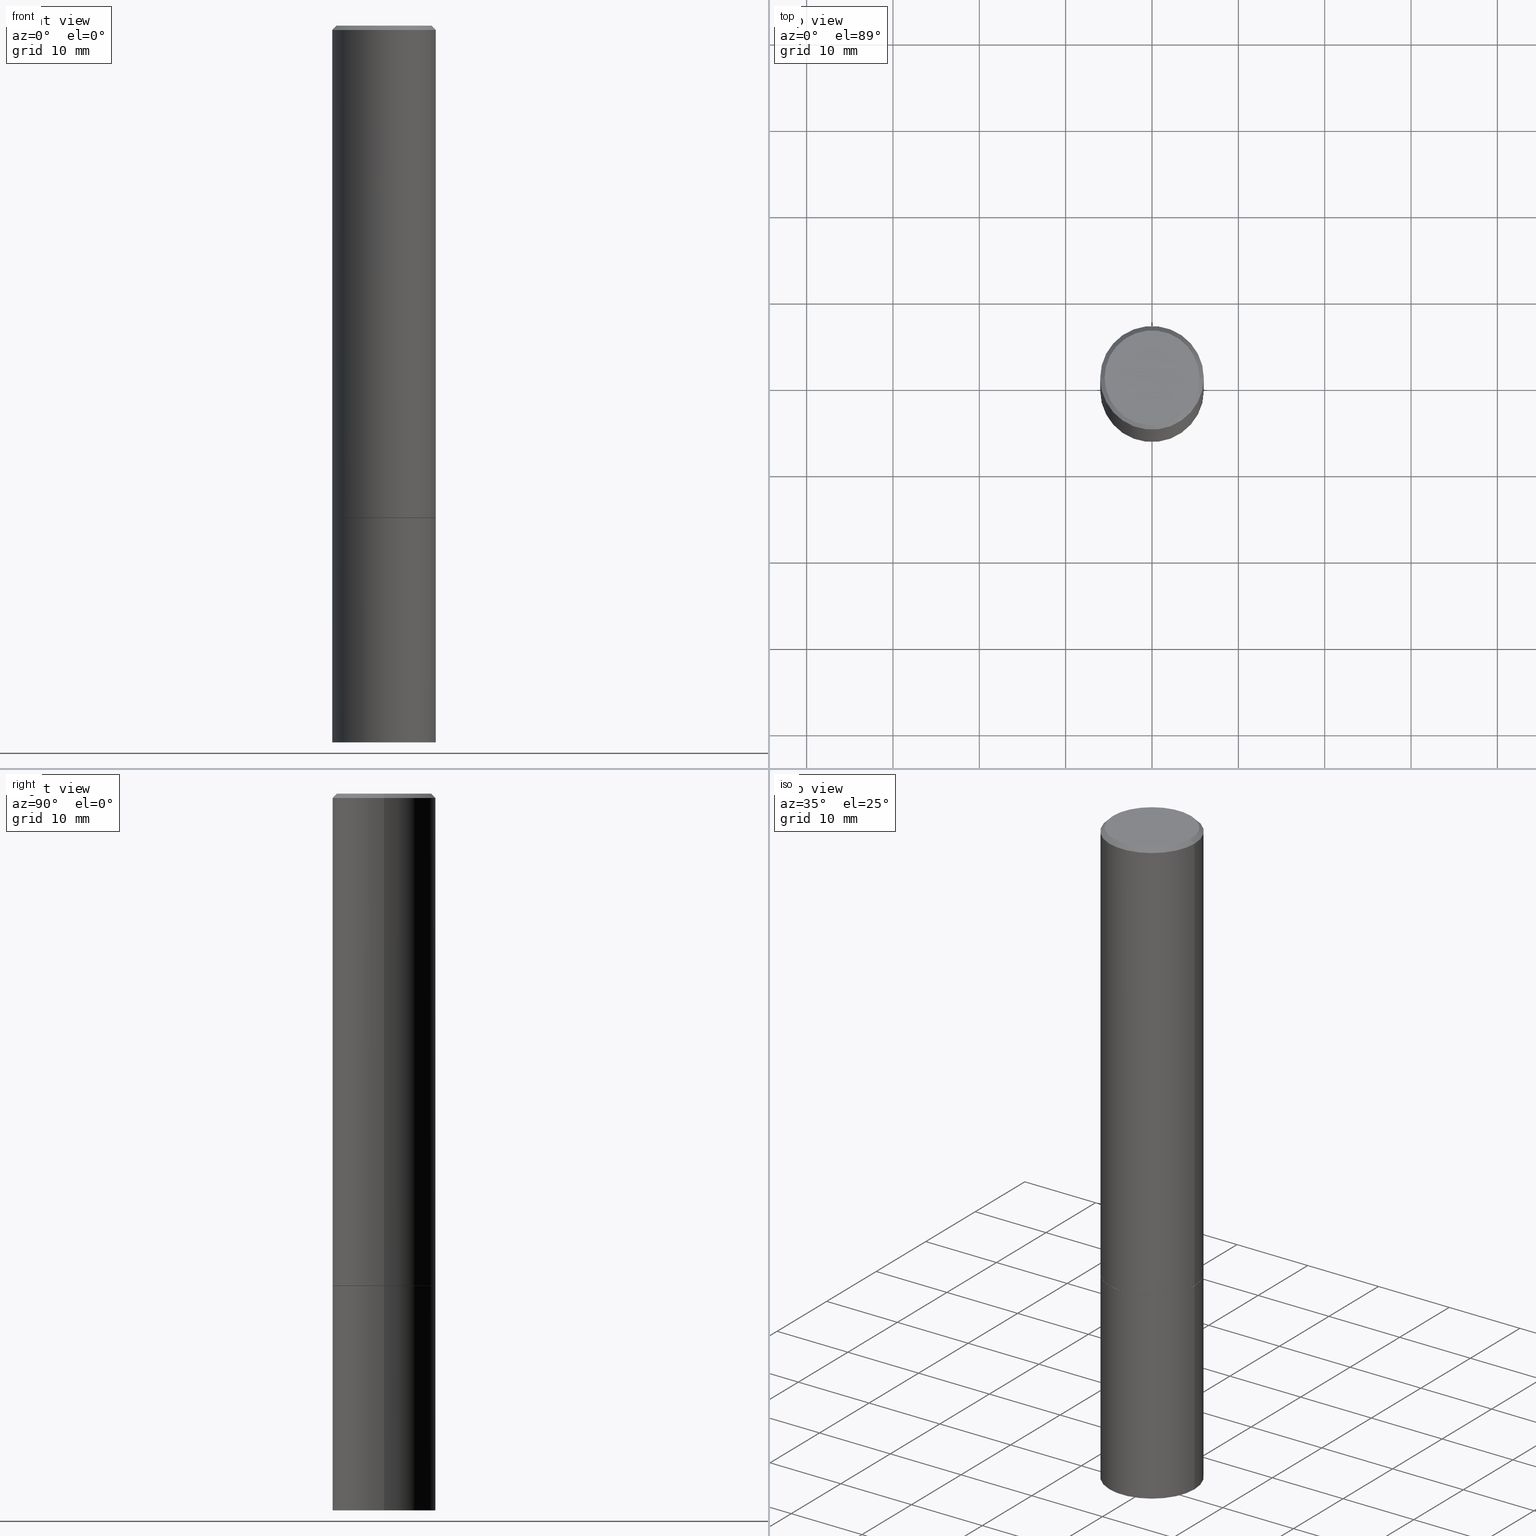
[diagram: canonical four-view strip — front | top / right | iso, engineering-drawing reading convention]
A machine part, canonical four-view strip (front | top / right | iso — engineering-drawing reading convention). The complete STEP part file that produces these views, byte-faithful:
ISO-10303-21;
HEADER;
FILE_DESCRIPTION (( 'STEP AP203' ),
    '1' );
FILE_NAME ('44722.STEP',
    '2024-02-28T07:52:35',
    ( '' ),
    ( '' ),
    'SwSTEP 2.0',
    'SolidWorks 2023',
    '' );
FILE_SCHEMA (( 'CONFIG_CONTROL_DESIGN' ));
ENDSEC;

DATA;
#1 = EDGE_LOOP ( 'NONE', ( #343, #241, #97, #204 ) ) ;
#2 = AXIS2_PLACEMENT_3D ( 'NONE', #53, #277, #189 ) ;
#3 = DIRECTION ( 'NONE',  ( -2.438088387897960049E-29, 3.491481338843145188E-15, 1.000000000000000000 ) ) ;
#4 = VERTEX_POINT ( 'NONE', #168 ) ;
#5 = CARTESIAN_POINT ( 'NONE',  ( -0.2351999999999999924, -6.164036757990147743E-15, -2.244100000000000428 ) ) ;
#6 = MANIFOLD_SOLID_BREP ( 'Body-Move/Copy2[1]', #121 ) ;
#7 = CARTESIAN_POINT ( 'NONE',  ( 5.487876547960065873E-29, -7.835233272497903917E-15, -2.244100000000000428 ) ) ;
#8 = ORIENTED_EDGE ( 'NONE', *, *, #171, .T. ) ;
#9 = APPROVAL_DATE_TIME ( #206, #235 ) ;
#10 = AXIS2_PLACEMENT_3D ( 'NONE', #236, #301, #311 ) ;
#11 = EDGE_CURVE ( 'NONE', #339, #237, #49, .T. ) ;
#12 = ADVANCED_FACE ( 'NONE', ( #244 ), #225, .T. ) ;
#13 = CIRCLE ( 'NONE', #361, 0.2361999999999999933 ) ;
#14 = DIRECTION ( 'NONE',  ( -1.000000000000000000, 6.982962677686265922E-15, -4.876176775795935793E-29 ) ) ;
#15 = PERSON_AND_ORGANIZATION ( #146, #352 ) ;
#16 = CARTESIAN_POINT ( 'NONE',  ( 5.485431079153880270E-29, -7.831741791159060910E-15, -2.243100000000000094 ) ) ;
#17 = FACE_OUTER_BOUND ( 'NONE', #150, .T. ) ;
#18 = ORIENTED_EDGE ( 'NONE', *, *, #286, .F. ) ;
#19 = ADVANCED_FACE ( 'NONE', ( #102 ), #108, .T. ) ;
#20 = CARTESIAN_POINT ( 'NONE',  ( -0.2361999999999999933, 1.678301941865356591E-15, -1.161852468318208757E-29 ) ) ;
#21 = CC_DESIGN_PERSON_AND_ORGANIZATION_ASSIGNMENT ( #344, #66, ( #55 ) ) ;
#22 = ORIENTED_EDGE ( 'NONE', *, *, #270, .F. ) ;
#23 = AXIS2_PLACEMENT_3D ( 'NONE', #151, #356, #199 ) ;
#24 = DIRECTION ( 'NONE',  ( -2.445468806185136597E-29, 3.491481338843145583E-15, 1.000000000000000000 ) ) ;
#25 = APPROVAL_PERSON_ORGANIZATION ( #15, #252, #357 ) ;
#26 = CARTESIAN_POINT ( 'NONE',  ( -1.043851414335219820E-46, 1.490343170380447200E-32, 4.268512490100411279E-18 ) ) ;
#27 = CARTESIAN_POINT ( 'NONE',  ( 4.890937612370285420E-31, -6.982962677686308865E-17, -0.02000000000000005246 ) ) ;
#28 = CC_DESIGN_DATE_AND_TIME_ASSIGNMENT ( #63, #98, ( #55 ) ) ;
#29 =( NAMED_UNIT ( * ) PLANE_ANGLE_UNIT ( ) SI_UNIT ( $, .RADIAN. ) );
#30 = CIRCLE ( 'NONE', #115, 0.2351999999999999924 ) ;
#31 = ORIENTED_EDGE ( 'NONE', *, *, #328, .T. ) ;
#32 = EDGE_CURVE ( 'NONE', #190, #290, #13, .T. ) ;
#33 = ADVANCED_FACE ( 'NONE', ( #185 ), #155, .T. ) ;
#34 = PLANE ( 'NONE',  #23 ) ;
#35 = APPROVAL_ROLE ( '' ) ;
#36 = VERTEX_POINT ( 'NONE', #242 ) ;
#37 = APPROVAL ( #312, 'UNSPECIFIED' ) ;
#38 = DIRECTION ( 'NONE',  ( -2.445468806185136597E-29, 3.491481338843145583E-15, 1.000000000000000000 ) ) ;
#39 = ORIENTED_EDGE ( 'NONE', *, *, #73, .T. ) ;
#40 = ORIENTED_EDGE ( 'NONE', *, *, #87, .T. ) ;
#41 = ORIENTED_EDGE ( 'NONE', *, *, #218, .F. ) ;
#42 = MECHANICAL_CONTEXT ( 'NONE', #366, 'mechanical' ) ;
#43 = UNCERTAINTY_MEASURE_WITH_UNIT (LENGTH_MEASURE( 1.000000000000000082E-05 ), #105, 'distance_accuracy_value', 'NONE');
#44 = DIRECTION ( 'NONE',  ( -2.445468806185136877E-29, 3.491481338843145188E-15, 1.000000000000000000 ) ) ;
#45 = PERSON_AND_ORGANIZATION_ROLE ( 'creator' ) ;
#46 = AXIS2_PLACEMENT_3D ( 'NONE', #118, #38, #266 ) ;
#47 = DIRECTION ( 'NONE',  ( -2.445468806185136877E-29, 3.491481338843145188E-15, 1.000000000000000000 ) ) ;
#48 =( LENGTH_UNIT ( ) NAMED_UNIT ( * ) SI_UNIT ( $, .METRE. ) );
#49 = LINE ( 'NONE', #354, #88 ) ;
#50 = CARTESIAN_POINT ( 'NONE',  ( 0.2361999999999999933, -1.649375784469496131E-15, 1.151752954443000088E-29 ) ) ;
#51 = EDGE_CURVE ( 'NONE', #190, #67, #294, .T. ) ;
#52 = VECTOR ( 'NONE', #232, 39.37007874015748143 ) ;
#53 = CARTESIAN_POINT ( 'NONE',  ( 4.890937612370285420E-31, -6.982962677686308865E-17, -0.02000000000000005246 ) ) ;
#54 = DIRECTION ( 'NONE',  ( 0.000000000000000000, 0.000000000000000000, 1.000000000000000000 ) ) ;
#55 = SECURITY_CLASSIFICATION ( '', '', #184 ) ;
#56 = AXIS2_PLACEMENT_3D ( 'NONE', #326, #192, #134 ) ;
#57 = EDGE_CURVE ( 'NONE', #67, #106, #222, .T. ) ;
#58 = AXIS2_PLACEMENT_3D ( 'NONE', #297, #54, #154 ) ;
#59 = EDGE_LOOP ( 'NONE', ( #179, #92 ) ) ;
#60 = CONICAL_SURFACE ( 'NONE', #2, 0.2361999999999997157, 0.7853981633974467247 ) ;
#61 = CALENDAR_DATE ( 2024, 28, 2 ) ;
#62 = DIRECTION ( 'NONE',  ( -2.445468806185136597E-29, 3.491481338843145583E-15, 1.000000000000000000 ) ) ;
#63 = DATE_AND_TIME ( #261, #181 ) ;
#64 = ORIENTED_EDGE ( 'NONE', *, *, #221, .F. ) ;
#65 = ORIENTED_EDGE ( 'NONE', *, *, #221, .T. ) ;
#66 = PERSON_AND_ORGANIZATION_ROLE ( 'classification_officer' ) ;
#67 = VERTEX_POINT ( 'NONE', #99 ) ;
#68 = PERSON_AND_ORGANIZATION ( #146, #352 ) ;
#69 = AXIS2_PLACEMENT_3D ( 'NONE', #7, #287, #364 ) ;
#70 = ORIENTED_EDGE ( 'NONE', *, *, #286, .T. ) ;
#71 = ORIENTED_EDGE ( 'NONE', *, *, #87, .F. ) ;
#72 = CARTESIAN_POINT ( 'NONE',  ( -0.2361999999999999933, -7.943871479852467996E-15, -2.244100000000000428 ) ) ;
#73 = EDGE_CURVE ( 'NONE', #153, #237, #320, .T. ) ;
#74 = PLANE ( 'NONE',  #180 ) ;
#75 = ORIENTED_EDGE ( 'NONE', *, *, #141, .T. ) ;
#76 = PERSON_AND_ORGANIZATION ( #146, #352 ) ;
#77 = AXIS2_PLACEMENT_3D ( 'NONE', #136, #276, #157 ) ;
#78 = CC_DESIGN_APPROVAL ( #252, ( #55 ) ) ;
#79 = FACE_OUTER_BOUND ( 'NONE', #243, .T. ) ;
#80 = DIRECTION ( 'NONE',  ( 1.000000000000000000, -6.982962677686266711E-15, 4.876176775795935793E-29 ) ) ;
#81 = DIRECTION ( 'NONE',  ( -2.445468806185136597E-29, 3.491481338843145583E-15, 1.000000000000000000 ) ) ;
#82 = DIRECTION ( 'NONE',  ( -2.445468806185136597E-29, 3.491481338843145583E-15, 1.000000000000000000 ) ) ;
#83 = CLOSED_SHELL ( 'NONE', ( #19, #33, #12, #94, #149, #161, #293, #100 ) ) ;
#84 = CONICAL_SURFACE ( 'NONE', #69, 0.2351999999999999924, 0.7853981633973970977 ) ;
#85 = DIRECTION ( 'NONE',  ( 1.000000000000000000, -6.982962677686264344E-15, 0.000000000000000000 ) ) ;
#86 = DIRECTION ( 'NONE',  ( -2.445468806185136597E-29, 3.491481338843145583E-15, 1.000000000000000000 ) ) ;
#87 = EDGE_CURVE ( 'NONE', #339, #159, #322, .T. ) ;
#88 = VECTOR ( 'NONE', #210, 39.37007874015748143 ) ;
#89 = CC_DESIGN_DATE_AND_TIME_ASSIGNMENT ( #113, #90, ( #353 ) ) ;
#90 = DATE_TIME_ROLE ( 'creation_date' ) ;
#91 = DIRECTION ( 'NONE',  ( 1.000000000000000000, -6.982962677686266711E-15, 4.876176775795936353E-29 ) ) ;
#92 = ORIENTED_EDGE ( 'NONE', *, *, #205, .F. ) ;
#93 = VECTOR ( 'NONE', #250, 39.37007874015748143 ) ;
#94 = ADVANCED_FACE ( 'NONE', ( #79 ), #60, .T. ) ;
#95 = LINE ( 'NONE', #211, #93 ) ;
#96 = AXIS2_PLACEMENT_3D ( 'NONE', #298, #194, #107 ) ;
#97 = ORIENTED_EDGE ( 'NONE', *, *, #51, .T. ) ;
#98 = DATE_TIME_ROLE ( 'classification_date' ) ;
#99 = CARTESIAN_POINT ( 'NONE',  ( 0.2361999999999999933, -9.484609056967400443E-15, -2.244100000000000428 ) ) ;
#100 = ADVANCED_FACE ( 'NONE', ( #274 ), #74, .F. ) ;
#101 = DIRECTION ( 'NONE',  ( 1.000000000000000000, -6.982962677686269866E-15, 0.000000000000000000 ) ) ;
#102 = FACE_OUTER_BOUND ( 'NONE', #346, .T. ) ;
#103 = DIRECTION ( 'NONE',  ( -2.445468806185136877E-29, 3.491481338843145188E-15, 1.000000000000000000 ) ) ;
#104 = FACE_OUTER_BOUND ( 'NONE', #318, .T. ) ;
#105 =( CONVERSION_BASED_UNIT ( 'INCH', #193 ) LENGTH_UNIT ( ) NAMED_UNIT ( #360 ) );
#106 = VERTEX_POINT ( 'NONE', #72 ) ;
#107 = DIRECTION ( 'NONE',  ( 1.000000000000000000, -6.982962677686264344E-15, 0.000000000000000000 ) ) ;
#108 = CONICAL_SURFACE ( 'NONE', #96, 0.2351999999999999924, 0.7853981633973970977 ) ;
#109 = CARTESIAN_POINT ( 'NONE',  ( 7.991058417971171713E-29, -1.140911357093774644E-14, -3.267700000000000049 ) ) ;
#110 = CARTESIAN_POINT ( 'NONE',  ( -0.2361999999999997157, 1.579546157692631255E-15, -0.02000000000000005246 ) ) ;
#111 = CC_DESIGN_PERSON_AND_ORGANIZATION_ASSIGNMENT ( #68, #257, ( #135 ) ) ;
#112 = AXIS2_PLACEMENT_3D ( 'NONE', #228, #258, #332 ) ;
#113 = DATE_AND_TIME ( #336, #267 ) ;
#114 = CARTESIAN_POINT ( 'NONE',  ( 0.2161999999999997257, -1.586759460484350016E-15, 4.268512490111238857E-18 ) ) ;
#115 = AXIS2_PLACEMENT_3D ( 'NONE', #304, #81, #85 ) ;
#116 = FACE_OUTER_BOUND ( 'NONE', #1, .T. ) ;
#117 = APPROVAL_ROLE ( '' ) ;
#118 = CARTESIAN_POINT ( 'NONE',  ( 0.000000000000000000, 0.000000000000000000, 0.000000000000000000 ) ) ;
#119 = ORIENTED_EDGE ( 'NONE', *, *, #32, .T. ) ;
#120 = VERTEX_POINT ( 'NONE', #325 ) ;
#121 = CLOSED_SHELL ( 'NONE', ( #310, #195, #308, #197 ) ) ;
#122 = VECTOR ( 'NONE', #44, 39.37007874015748143 ) ;
#123 = DESIGN_CONTEXT ( 'detailed design', #169, 'design' ) ;
#124 = CARTESIAN_POINT ( 'NONE',  ( 0.2361999999999997157, -1.690279253850496996E-15, -0.02000000000000005246 ) ) ;
#125 = EDGE_CURVE ( 'NONE', #120, #237, #265, .T. ) ;
#126 = DIRECTION ( 'NONE',  ( -2.445468806185136597E-29, 3.491481338843145583E-15, 1.000000000000000000 ) ) ;
#127 = CARTESIAN_POINT ( 'NONE',  ( 0.000000000000000000, 0.000000000000000000, 0.000000000000000000 ) ) ;
#128 = LINE ( 'NONE', #20, #122 ) ;
#129 = LINE ( 'NONE', #291, #156 ) ;
#130 = COORDINATED_UNIVERSAL_TIME_OFFSET ( 5, 0, .BEHIND. ) ;
#131 = DIRECTION ( 'NONE',  ( -2.445468806185136597E-29, 3.491481338843145583E-15, 1.000000000000000000 ) ) ;
#132 = EDGE_CURVE ( 'NONE', #4, #120, #129, .T. ) ;
#133 = ORIENTED_EDGE ( 'NONE', *, *, #132, .T. ) ;
#134 = DIRECTION ( 'NONE',  ( -1.000000000000000000, 6.982962677686265922E-15, -4.876176775795935793E-29 ) ) ;
#135 = PRODUCT ( '44722', '44722', '', ( #42 ) ) ;
#136 = CARTESIAN_POINT ( 'NONE',  ( 0.000000000000000000, 0.000000000000000000, 0.000000000000000000 ) ) ;
#137 = CIRCLE ( 'NONE', #342, 0.2351999999999999924 ) ;
#138 = EDGE_CURVE ( 'NONE', #290, #106, #128, .T. ) ;
#139 = DIRECTION ( 'NONE',  ( 1.000000000000000000, -6.982962677686265133E-15, 0.000000000000000000 ) ) ;
#140 = APPROVAL_DATE_TIME ( #177, #252 ) ;
#141 = EDGE_CURVE ( 'NONE', #159, #120, #263, .T. ) ;
#142 = AXIS2_PLACEMENT_3D ( 'NONE', #127, #82, #80 ) ;
#143 = CC_DESIGN_SECURITY_CLASSIFICATION ( #55, ( #167 ) ) ;
#144 = PERSON_AND_ORGANIZATION ( #146, #352 ) ;
#145 = VERTEX_POINT ( 'NONE', #269 ) ;
#146 = PERSON ( 'UNSPECIFIED', 'UNSPECIFIED', 'UNSPECIFIED', ('UNSPECIFIED'), ('UNSPECIFIED'), ('UNSPECIFIED') ) ;
#147 = COORDINATED_UNIVERSAL_TIME_OFFSET ( 5, 0, .BEHIND. ) ;
#148 = ORIENTED_EDGE ( 'NONE', *, *, #125, .F. ) ;
#149 = ADVANCED_FACE ( 'NONE', ( #17 ), #305, .T. ) ;
#150 = EDGE_LOOP ( 'NONE', ( #358, #285, #133, #18 ) ) ;
#151 = CARTESIAN_POINT ( 'NONE',  ( 1.649375784469575806E-15, 0.2361999999999885858, -3.267700000000001381 ) ) ;
#152 = APPROVAL_STATUS ( 'not_yet_approved' ) ;
#153 = VERTEX_POINT ( 'NONE', #355 ) ;
#154 = DIRECTION ( 'NONE',  ( 1.000000000000000000, 0.000000000000000000, 0.000000000000000000 ) ) ;
#155 = CYLINDRICAL_SURFACE ( 'NONE', #142, 0.2361999999999998545 ) ;
#156 = VECTOR ( 'NONE', #47, 39.37007874015748143 ) ;
#157 = DIRECTION ( 'NONE',  ( 1.000000000000000000, -6.982962677686266711E-15, 4.876176775795936353E-29 ) ) ;
#158 = DIRECTION ( 'NONE',  ( 0.7071067811865464625, -7.319954787623252890E-15, -0.7071067811865486830 ) ) ;
#159 = VERTEX_POINT ( 'NONE', #114 ) ;
#160 = CARTESIAN_POINT ( 'NONE',  ( -1.043851414335219820E-46, 1.490343170380447200E-32, 4.268512490100411279E-18 ) ) ;
#161 = ADVANCED_FACE ( 'NONE', ( #178 ), #84, .T. ) ;
#162 = DIRECTION ( 'NONE',  ( 1.000000000000000000, -6.982962677686269077E-15, 0.000000000000000000 ) ) ;
#163 = CALENDAR_DATE ( 2024, 28, 2 ) ;
#164 = CC_DESIGN_PERSON_AND_ORGANIZATION_ASSIGNMENT ( #207, #314, ( #167 ) ) ;
#165 = CIRCLE ( 'NONE', #208, 0.2361999999999999655 ) ;
#166 = FACE_OUTER_BOUND ( 'NONE', #59, .T. ) ;
#167 = PRODUCT_DEFINITION_FORMATION_WITH_SPECIFIED_SOURCE ( 'ANY', '', #135, .NOT_KNOWN. ) ;
#168 = CARTESIAN_POINT ( 'NONE',  ( 0.2361999999999999655, -9.481117575628557435E-15, -2.243100000000000094 ) ) ;
#169 = APPLICATION_CONTEXT ( 'configuration controlled 3d designs of mechanical parts and assemblies' ) ;
#170 = CARTESIAN_POINT ( 'NONE',  ( -0.2161999999999997257, 1.544631344304200197E-15, 4.268512490089730842E-18 ) ) ;
#171 = EDGE_CURVE ( 'NONE', #145, #4, #95, .T. ) ;
#172 = FACE_OUTER_BOUND ( 'NONE', #255, .T. ) ;
#173 = EDGE_CURVE ( 'NONE', #106, #67, #295, .T. ) ;
#174 = VECTOR ( 'NONE', #158, 39.37007874015748143 ) ;
#175 =( GEOMETRIC_REPRESENTATION_CONTEXT ( 3 ) GLOBAL_UNCERTAINTY_ASSIGNED_CONTEXT ( ( #43 ) ) GLOBAL_UNIT_ASSIGNED_CONTEXT ( ( #105, #29, #279 ) ) REPRESENTATION_CONTEXT ( 'NONE', 'WORKASPACE' ) );
#176 = ORIENTED_EDGE ( 'NONE', *, *, #132, .F. ) ;
#177 = DATE_AND_TIME ( #227, #215 ) ;
#178 = FACE_OUTER_BOUND ( 'NONE', #182, .T. ) ;
#179 = ORIENTED_EDGE ( 'NONE', *, *, #32, .F. ) ;
#180 = AXIS2_PLACEMENT_3D ( 'NONE', #216, #245, #14 ) ;
#181 = LOCAL_TIME ( 2, 52, 35.00000000000000000, #130 ) ;
#182 = EDGE_LOOP ( 'NONE', ( #22, #213, #8, #209 ) ) ;
#183 = APPLICATION_PROTOCOL_DEFINITION ( 'international standard', 'config_control_design', 1994, #366 ) ;
#184 = SECURITY_CLASSIFICATION_LEVEL ( 'unclassified' ) ;
#185 = FACE_OUTER_BOUND ( 'NONE', #187, .T. ) ;
#186 = DIRECTION ( 'NONE',  ( 1.000000000000000000, -6.982962677686266711E-15, 0.000000000000000000 ) ) ;
#187 = EDGE_LOOP ( 'NONE', ( #65, #39, #148, #176 ) ) ;
#188 = CIRCLE ( 'NONE', #200, 0.2361999999999999655 ) ;
#189 = DIRECTION ( 'NONE',  ( -1.000000000000000000, 6.982962677686266711E-15, 0.000000000000000000 ) ) ;
#190 = VERTEX_POINT ( 'NONE', #234 ) ;
#191 = DIRECTION ( 'NONE',  ( 1.000000000000000000, -6.982962677686265133E-15, 0.000000000000000000 ) ) ;
#192 = DIRECTION ( 'NONE',  ( 2.438088387897960049E-29, -3.491481338843145188E-15, -1.000000000000000000 ) ) ;
#193 = LENGTH_MEASURE_WITH_UNIT ( LENGTH_MEASURE( 0.02539999999999999897 ), #48 );
#194 = DIRECTION ( 'NONE',  ( -2.445468806185136597E-29, 3.491481338843145583E-15, 1.000000000000000000 ) ) ;
#195 = ADVANCED_FACE ( 'NONE', ( #166 ), #34, .T. ) ;
#196 = AXIS2_PLACEMENT_3D ( 'NONE', #160, #299, #323 ) ;
#197 = ADVANCED_FACE ( 'NONE', ( #116 ), #246, .T. ) ;
#198 = DIRECTION ( 'NONE',  ( 1.000000000000000000, -6.982962677686264344E-15, 0.000000000000000000 ) ) ;
#199 = DIRECTION ( 'NONE',  ( -1.000000000000000000, 6.982962677686265922E-15, -4.876176775795935793E-29 ) ) ;
#200 = AXIS2_PLACEMENT_3D ( 'NONE', #303, #249, #365 ) ;
#201 = PRODUCT_RELATED_PRODUCT_CATEGORY ( 'detail', '', ( #135 ) ) ;
#202 = PERSON_AND_ORGANIZATION ( #146, #352 ) ;
#203 = AXIS2_PLACEMENT_3D ( 'NONE', #327, #212, #162 ) ;
#204 = ORIENTED_EDGE ( 'NONE', *, *, #173, .F. ) ;
#205 = EDGE_CURVE ( 'NONE', #290, #190, #350, .T. ) ;
#206 = DATE_AND_TIME ( #61, #260 ) ;
#207 = PERSON_AND_ORGANIZATION ( #146, #352 ) ;
#208 = AXIS2_PLACEMENT_3D ( 'NONE', #16, #126, #101 ) ;
#209 = ORIENTED_EDGE ( 'NONE', *, *, #362, .F. ) ;
#210 = DIRECTION ( 'NONE',  ( -0.7071067811865464625, 2.468850131082245228E-15, -0.7071067811865486830 ) ) ;
#211 = CARTESIAN_POINT ( 'NONE',  ( 0.2351999999999999924, -9.477626094289712851E-15, -2.244100000000000428 ) ) ;
#212 = DIRECTION ( 'NONE',  ( -2.445468806185136597E-29, 3.491481338843145583E-15, 1.000000000000000000 ) ) ;
#213 = ORIENTED_EDGE ( 'NONE', *, *, #218, .T. ) ;
#214 = AXIS2_PLACEMENT_3D ( 'NONE', #309, #3, #340 ) ;
#215 = LOCAL_TIME ( 2, 52, 35.00000000000000000, #307 ) ;
#216 = CARTESIAN_POINT ( 'NONE',  ( 1.509716530915768746E-15, 0.2161999999999997257, -7.527240092128370190E-16 ) ) ;
#217 = CARTESIAN_POINT ( 'NONE',  ( 7.991058417971171713E-29, -1.140911357093774644E-14, -3.267700000000000049 ) ) ;
#218 = EDGE_CURVE ( 'NONE', #36, #145, #137, .T. ) ;
#219 = APPROVAL_DATE_TIME ( #359, #37 ) ;
#220 = FACE_OUTER_BOUND ( 'NONE', #226, .T. ) ;
#221 = EDGE_CURVE ( 'NONE', #4, #153, #188, .T. ) ;
#222 = CIRCLE ( 'NONE', #203, 0.2361999999999999933 ) ;
#223 = CARTESIAN_POINT ( 'NONE',  ( 5.487876547960065873E-29, -7.835233272497903917E-15, -2.244100000000000428 ) ) ;
#224 = LINE ( 'NONE', #5, #52 ) ;
#225 = CONICAL_SURFACE ( 'NONE', #306, 0.2361999999999997157, 0.7853981633974467247 ) ;
#226 = EDGE_LOOP ( 'NONE', ( #119, #231, #284, #264 ) ) ;
#227 = CALENDAR_DATE ( 2024, 28, 2 ) ;
#228 = CARTESIAN_POINT ( 'NONE',  ( 4.890937612370285420E-31, -6.982962677686308865E-17, -0.02000000000000005246 ) ) ;
#229 = AXIS2_PLACEMENT_3D ( 'NONE', #26, #131, #268 ) ;
#230 = APPROVAL_PERSON_ORGANIZATION ( #262, #235, #117 ) ;
#231 = ORIENTED_EDGE ( 'NONE', *, *, #138, .T. ) ;
#232 = DIRECTION ( 'NONE',  ( -0.7071067811865112684, 7.493145998870223209E-15, 0.7071067811865837660 ) ) ;
#233 = APPLICATION_PROTOCOL_DEFINITION ( 'international standard', 'config_control_design', 1994, #169 ) ;
#234 = CARTESIAN_POINT ( 'NONE',  ( 0.2361999999999999933, -1.305848935540724297E-14, -3.267700000000000049 ) ) ;
#235 = APPROVAL ( #152, 'UNSPECIFIED' ) ;
#236 = CARTESIAN_POINT ( 'NONE',  ( 5.487876547960065873E-29, -7.835233272497903917E-15, -2.244100000000000428 ) ) ;
#237 = VERTEX_POINT ( 'NONE', #110 ) ;
#238 = ORIENTED_EDGE ( 'NONE', *, *, #173, .T. ) ;
#239 = DIRECTION ( 'NONE',  ( -1.000000000000000000, 6.982962677686266711E-15, 0.000000000000000000 ) ) ;
#240 = DIRECTION ( 'NONE',  ( 2.445468806185136597E-29, -3.491481338843145583E-15, -1.000000000000000000 ) ) ;
#241 = ORIENTED_EDGE ( 'NONE', *, *, #205, .T. ) ;
#242 = CARTESIAN_POINT ( 'NONE',  ( -0.2351999999999999924, -6.158738303641926129E-15, -2.244100000000000428 ) ) ;
#243 = EDGE_LOOP ( 'NONE', ( #256, #71, #321, #70 ) ) ;
#244 = FACE_OUTER_BOUND ( 'NONE', #316, .T. ) ;
#245 = DIRECTION ( 'NONE',  ( 2.438088387897960049E-29, -3.491481338843145188E-15, -1.000000000000000000 ) ) ;
#246 = CYLINDRICAL_SURFACE ( 'NONE', #275, 0.2361999999999999933 ) ;
#247 = MANIFOLD_SOLID_BREP ( 'Body-Move/Copy2[2]', #83 ) ;
#248 = APPROVAL_PERSON_ORGANIZATION ( #202, #37, #35 ) ;
#249 = DIRECTION ( 'NONE',  ( -2.445468806185136597E-29, 3.491481338843145583E-15, 1.000000000000000000 ) ) ;
#250 = DIRECTION ( 'NONE',  ( 0.7071067811865112684, -2.468850131081876830E-15, 0.7071067811865837660 ) ) ;
#251 = PLANE ( 'NONE',  #214 ) ;
#252 = APPROVAL ( #333, 'UNSPECIFIED' ) ;
#253 = ORIENTED_EDGE ( 'NONE', *, *, #57, .T. ) ;
#254 = COORDINATED_UNIVERSAL_TIME_OFFSET ( 5, 0, .BEHIND. ) ;
#255 = EDGE_LOOP ( 'NONE', ( #296, #41 ) ) ;
#256 = ORIENTED_EDGE ( 'NONE', *, *, #141, .F. ) ;
#257 = PERSON_AND_ORGANIZATION_ROLE ( 'design_owner' ) ;
#258 = DIRECTION ( 'NONE',  ( -2.445468806185136597E-29, 3.491481338843145583E-15, 1.000000000000000000 ) ) ;
#259 = CIRCLE ( 'NONE', #229, 0.2161999999999997257 ) ;
#260 = LOCAL_TIME ( 2, 52, 35.00000000000000000, #338 ) ;
#261 = CALENDAR_DATE ( 2024, 28, 2 ) ;
#262 = PERSON_AND_ORGANIZATION ( #146, #352 ) ;
#263 = LINE ( 'NONE', #124, #174 ) ;
#264 = ORIENTED_EDGE ( 'NONE', *, *, #51, .F. ) ;
#265 = CIRCLE ( 'NONE', #313, 0.2361999999999997157 ) ;
#266 = DIRECTION ( 'NONE',  ( 1.000000000000000000, -6.982962677686266711E-15, 4.876176775795935793E-29 ) ) ;
#267 = LOCAL_TIME ( 2, 52, 35.00000000000000000, #254 ) ;
#268 = DIRECTION ( 'NONE',  ( 1.000000000000000000, -6.982962677686267499E-15, 4.876217060660161841E-29 ) ) ;
#269 = CARTESIAN_POINT ( 'NONE',  ( 0.2351999999999999924, -9.477626094289712851E-15, -2.244100000000000428 ) ) ;
#270 = EDGE_CURVE ( 'NONE', #36, #153, #224, .T. ) ;
#271 = CARTESIAN_POINT ( 'NONE',  ( 4.890937612370285420E-31, -6.982962677686308865E-17, -0.02000000000000005246 ) ) ;
#272 = ORIENTED_EDGE ( 'NONE', *, *, #125, .T. ) ;
#273 = CARTESIAN_POINT ( 'NONE',  ( -0.2361999999999999933, -7.943871479852467996E-15, -3.267700000000000049 ) ) ;
#274 = FACE_OUTER_BOUND ( 'NONE', #337, .T. ) ;
#275 = AXIS2_PLACEMENT_3D ( 'NONE', #288, #62, #91 ) ;
#276 = DIRECTION ( 'NONE',  ( -2.445468806185136597E-29, 3.491481338843145583E-15, 1.000000000000000000 ) ) ;
#277 = DIRECTION ( 'NONE',  ( 2.445468806185136597E-29, -3.491481338843145583E-15, -1.000000000000000000 ) ) ;
#278 = VECTOR ( 'NONE', #103, 39.37007874015748143 ) ;
#279 =( NAMED_UNIT ( * ) SI_UNIT ( $, .STERADIAN. ) SOLID_ANGLE_UNIT ( ) );
#280 = ORIENTED_EDGE ( 'NONE', *, *, #171, .F. ) ;
#281 = PERSON_AND_ORGANIZATION_ROLE ( 'creator' ) ;
#282 = CC_DESIGN_PERSON_AND_ORGANIZATION_ASSIGNMENT ( #76, #45, ( #167 ) ) ;
#283 = ORIENTED_EDGE ( 'NONE', *, *, #270, .T. ) ;
#284 = ORIENTED_EDGE ( 'NONE', *, *, #57, .F. ) ;
#285 = ORIENTED_EDGE ( 'NONE', *, *, #362, .T. ) ;
#286 = EDGE_CURVE ( 'NONE', #237, #120, #341, .T. ) ;
#287 = DIRECTION ( 'NONE',  ( -2.445468806185136597E-29, 3.491481338843145583E-15, 1.000000000000000000 ) ) ;
#288 = CARTESIAN_POINT ( 'NONE',  ( 0.000000000000000000, 0.000000000000000000, 0.000000000000000000 ) ) ;
#289 = EDGE_CURVE ( 'NONE', #145, #36, #30, .T. ) ;
#290 = VERTEX_POINT ( 'NONE', #273 ) ;
#291 = CARTESIAN_POINT ( 'NONE',  ( 0.2361999999999998545, -1.649375784469495145E-15, 1.151752954442999387E-29 ) ) ;
#292 = ADVANCED_BREP_SHAPE_REPRESENTATION ( '44722', ( #6, #247, #58 ), #175 ) ;
#293 = ADVANCED_FACE ( 'NONE', ( #172 ), #251, .F. ) ;
#294 = LINE ( 'NONE', #50, #345 ) ;
#295 = CIRCLE ( 'NONE', #10, 0.2361999999999999933 ) ;
#296 = ORIENTED_EDGE ( 'NONE', *, *, #289, .F. ) ;
#297 = CARTESIAN_POINT ( 'NONE',  ( 0.000000000000000000, 0.000000000000000000, 0.000000000000000000 ) ) ;
#298 = CARTESIAN_POINT ( 'NONE',  ( 5.487876547960065873E-29, -7.835233272497903917E-15, -2.244100000000000428 ) ) ;
#299 = DIRECTION ( 'NONE',  ( -2.445468806185136597E-29, 3.491481338843145583E-15, 1.000000000000000000 ) ) ;
#300 = LOCAL_TIME ( 2, 52, 35.00000000000000000, #147 ) ;
#301 = DIRECTION ( 'NONE',  ( -2.445468806185136597E-29, 3.491481338843145583E-15, 1.000000000000000000 ) ) ;
#302 = PLANE ( 'NONE',  #56 ) ;
#303 = CARTESIAN_POINT ( 'NONE',  ( 5.485431079153880270E-29, -7.831741791159060910E-15, -2.243100000000000094 ) ) ;
#304 = CARTESIAN_POINT ( 'NONE',  ( 5.487876547960065873E-29, -7.835233272497903917E-15, -2.244100000000000428 ) ) ;
#305 = CYLINDRICAL_SURFACE ( 'NONE', #46, 0.2361999999999998545 ) ;
#306 = AXIS2_PLACEMENT_3D ( 'NONE', #27, #240, #239 ) ;
#307 = COORDINATED_UNIVERSAL_TIME_OFFSET ( 5, 0, .BEHIND. ) ;
#308 = ADVANCED_FACE ( 'NONE', ( #104 ), #302, .F. ) ;
#309 = CARTESIAN_POINT ( 'NONE',  ( 5.487876547960065873E-29, -7.835233272497903917E-15, -2.244100000000000428 ) ) ;
#310 = ADVANCED_FACE ( 'NONE', ( #220 ), #348, .T. ) ;
#311 = DIRECTION ( 'NONE',  ( 1.000000000000000000, -6.982962677686269077E-15, 0.000000000000000000 ) ) ;
#312 = APPROVAL_STATUS ( 'not_yet_approved' ) ;
#313 = AXIS2_PLACEMENT_3D ( 'NONE', #271, #24, #186 ) ;
#314 = PERSON_AND_ORGANIZATION_ROLE ( 'design_supplier' ) ;
#315 = ORIENTED_EDGE ( 'NONE', *, *, #11, .F. ) ;
#316 = EDGE_LOOP ( 'NONE', ( #351, #75, #272, #315 ) ) ;
#317 = CARTESIAN_POINT ( 'NONE',  ( -0.2361999999999998545, 1.678301941865355605E-15, -1.161852468318208056E-29 ) ) ;
#318 = EDGE_LOOP ( 'NONE', ( #253, #238 ) ) ;
#319 = CC_DESIGN_PERSON_AND_ORGANIZATION_ASSIGNMENT ( #144, #281, ( #353 ) ) ;
#320 = LINE ( 'NONE', #317, #278 ) ;
#321 = ORIENTED_EDGE ( 'NONE', *, *, #11, .T. ) ;
#322 = CIRCLE ( 'NONE', #196, 0.2161999999999997257 ) ;
#323 = DIRECTION ( 'NONE',  ( 1.000000000000000000, -6.982962677686267499E-15, 4.876217060660161841E-29 ) ) ;
#324 = CC_DESIGN_APPROVAL ( #37, ( #167 ) ) ;
#325 = CARTESIAN_POINT ( 'NONE',  ( 0.2361999999999997157, -1.690279253850496996E-15, -0.02000000000000005246 ) ) ;
#326 = CARTESIAN_POINT ( 'NONE',  ( 1.649375784469550759E-15, 0.2361999999999921662, -2.244100000000000872 ) ) ;
#327 = CARTESIAN_POINT ( 'NONE',  ( 5.487876547960065873E-29, -7.835233272497903917E-15, -2.244100000000000428 ) ) ;
#328 = EDGE_CURVE ( 'NONE', #159, #339, #259, .T. ) ;
#329 = AXIS2_PLACEMENT_3D ( 'NONE', #109, #86, #139 ) ;
#330 = PRODUCT_DEFINITION_SHAPE ( 'NONE', 'NONE',  #353 ) ;
#331 = DIRECTION ( 'NONE',  ( -2.445468806185136597E-29, 3.491481338843145583E-15, 1.000000000000000000 ) ) ;
#332 = DIRECTION ( 'NONE',  ( 1.000000000000000000, -6.982962677686266711E-15, 0.000000000000000000 ) ) ;
#333 = APPROVAL_STATUS ( 'not_yet_approved' ) ;
#334 = ORIENTED_EDGE ( 'NONE', *, *, #289, .T. ) ;
#335 = SHAPE_DEFINITION_REPRESENTATION ( #330, #292 ) ;
#336 = CALENDAR_DATE ( 2024, 28, 2 ) ;
#337 = EDGE_LOOP ( 'NONE', ( #40, #31 ) ) ;
#338 = COORDINATED_UNIVERSAL_TIME_OFFSET ( 5, 0, .BEHIND. ) ;
#339 = VERTEX_POINT ( 'NONE', #170 ) ;
#340 = DIRECTION ( 'NONE',  ( 1.000000000000000000, -6.982962677686265922E-15, 4.876176775795935793E-29 ) ) ;
#341 = CIRCLE ( 'NONE', #112, 0.2361999999999997157 ) ;
#342 = AXIS2_PLACEMENT_3D ( 'NONE', #223, #331, #198 ) ;
#343 = ORIENTED_EDGE ( 'NONE', *, *, #138, .F. ) ;
#344 = PERSON_AND_ORGANIZATION ( #146, #352 ) ;
#345 = VECTOR ( 'NONE', #347, 39.37007874015748143 ) ;
#346 = EDGE_LOOP ( 'NONE', ( #334, #283, #64, #280 ) ) ;
#347 = DIRECTION ( 'NONE',  ( -2.445468806185136877E-29, 3.491481338843145188E-15, 1.000000000000000000 ) ) ;
#348 = CYLINDRICAL_SURFACE ( 'NONE', #77, 0.2361999999999999933 ) ;
#349 = DIRECTION ( 'NONE',  ( -2.445468806185136597E-29, 3.491481338843145583E-15, 1.000000000000000000 ) ) ;
#350 = CIRCLE ( 'NONE', #329, 0.2361999999999999933 ) ;
#351 = ORIENTED_EDGE ( 'NONE', *, *, #328, .F. ) ;
#352 = ORGANIZATION ( 'UNSPECIFIED', 'UNSPECIFIED', '' ) ;
#353 = PRODUCT_DEFINITION ( 'UNKNOWN', '', #167, #123 ) ;
#354 = CARTESIAN_POINT ( 'NONE',  ( -0.2361999999999997157, 1.579546157692631255E-15, -0.02000000000000005246 ) ) ;
#355 = CARTESIAN_POINT ( 'NONE',  ( -0.2361999999999999655, -2.272483767102603343E-15, -2.243100000000000094 ) ) ;
#356 = DIRECTION ( 'NONE',  ( 2.438088387897960049E-29, -3.491481338843145188E-15, -1.000000000000000000 ) ) ;
#357 = APPROVAL_ROLE ( '' ) ;
#358 = ORIENTED_EDGE ( 'NONE', *, *, #73, .F. ) ;
#359 = DATE_AND_TIME ( #163, #300 ) ;
#360 = DIMENSIONAL_EXPONENTS ( 1.000000000000000000, 0.000000000000000000, 0.000000000000000000, 0.000000000000000000, 0.000000000000000000, 0.000000000000000000, 0.000000000000000000 ) ;
#361 = AXIS2_PLACEMENT_3D ( 'NONE', #217, #349, #191 ) ;
#362 = EDGE_CURVE ( 'NONE', #153, #4, #165, .T. ) ;
#363 = CC_DESIGN_APPROVAL ( #235, ( #353 ) ) ;
#364 = DIRECTION ( 'NONE',  ( 1.000000000000000000, -6.982962677686264344E-15, 0.000000000000000000 ) ) ;
#365 = DIRECTION ( 'NONE',  ( 1.000000000000000000, -6.982962677686269866E-15, 0.000000000000000000 ) ) ;
#366 = APPLICATION_CONTEXT ( 'configuration controlled 3d designs of mechanical parts and assemblies' ) ;
ENDSEC;
END-ISO-10303-21;
